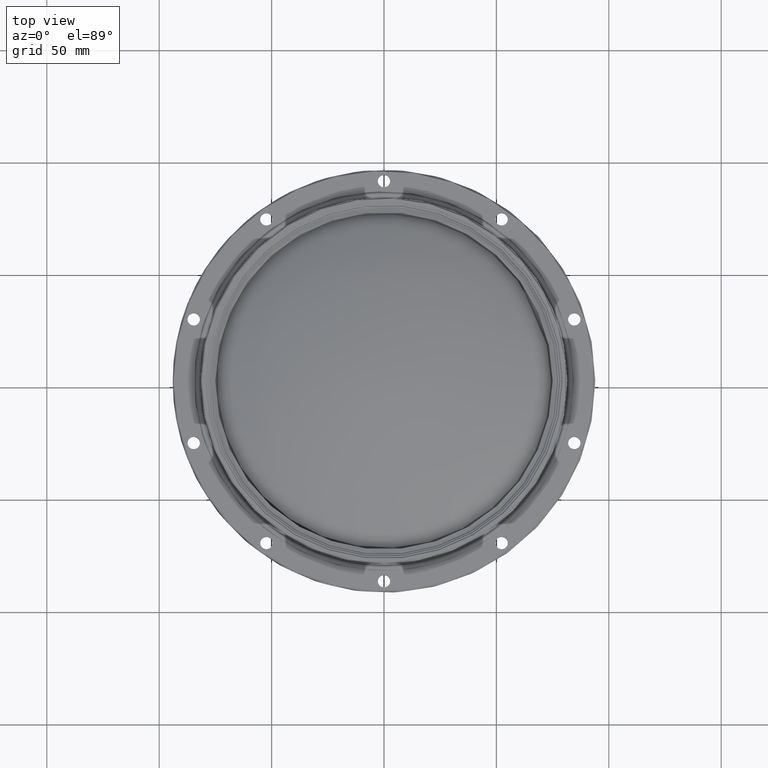
[diagram: clean part render]
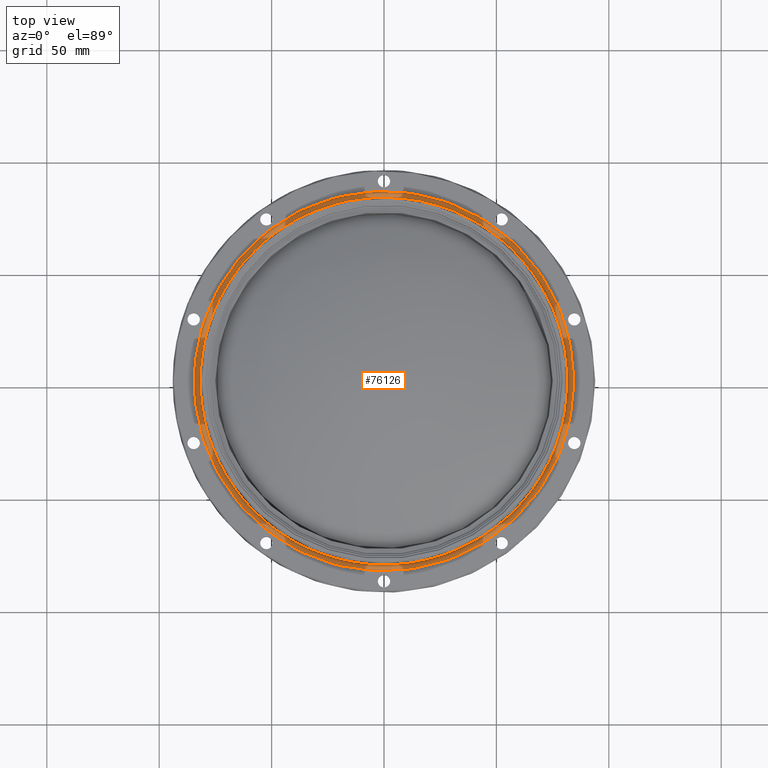
[diagram: same view with one face highlighted and labeled with its STEP entity id]
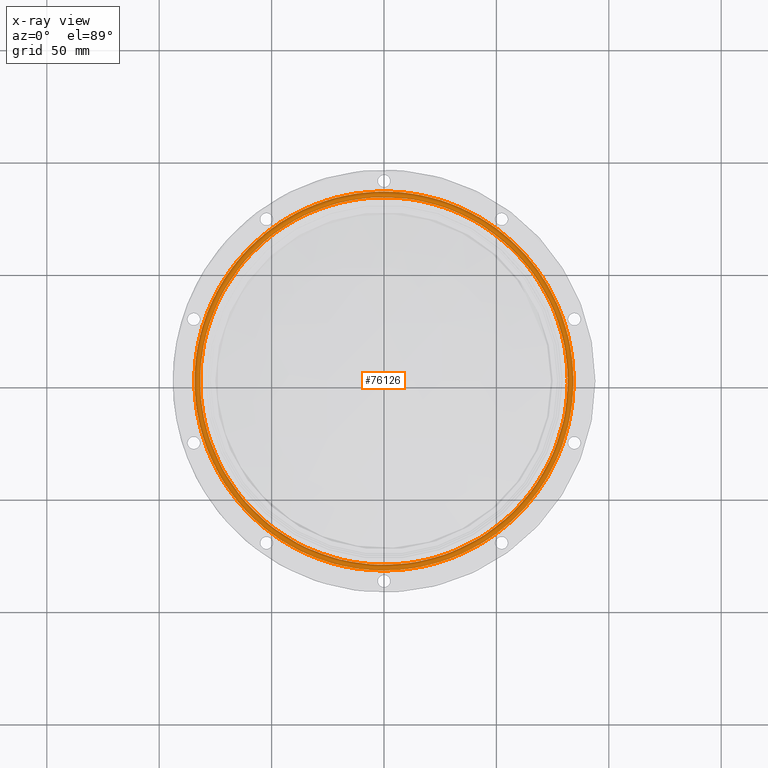
[diagram: x-ray of the same camera — body ghosted, the highlighted face saturated]
A machine part, top view. The second image highlights one B-rep face of the part: STEP entity #76126.
The next image is the same camera in x-ray: the body ghosted, the highlighted face saturated — about 0% of this face is hidden behind the body in this view.
In plain terms, the highlighted face is a freeform B-spline surface patch.
Its self-contained STEP definition (entity closure, byte-faithful):
#22 = CARTESIAN_POINT ( 'NONE',  ( 84.60162405190543211, -169.2032481038108642, -17.73434851268137180 ) ) ;
#134 = CARTESIAN_POINT ( 'NONE',  ( 0.000000000000000000, 0.000000000000000000, -20.15934851268138672 ) ) ;
#607 = CARTESIAN_POINT ( 'NONE',  ( 82.26133566486527116, -164.5226713297305423, -20.15934851268138672 ) ) ;
#1197 = CARTESIAN_POINT ( 'NONE',  ( -81.39837594809459631, -162.7967518961891926, -17.73434851268137180 ) ) ;
#2381 = CARTESIAN_POINT ( 'NONE',  ( -83.00000000000000000, 0.000000000000000000, -17.73434851268137180 ) ) ;
#2964 = CARTESIAN_POINT ( 'NONE',  ( 85.06831449143355428, -170.1366289828671086, -19.26647110480477920 ) ) ;
#3548 = CARTESIAN_POINT ( 'NONE',  ( 85.06831449143355428, 0.000000000000000000, -19.26647110480477210 ) ) ;
#4137 = CARTESIAN_POINT ( 'NONE',  ( -83.73866433513474306, 167.4773286702694861, -20.15934851268138672 ) ) ;
#5302 = CARTESIAN_POINT ( 'NONE',  ( -85.06831449143355428, 0.000000000000000000, -19.26647110480477210 ) ) ;
#8458 = EDGE_LOOP ( 'NONE', ( #39296 ) ) ;
#9006 = CARTESIAN_POINT ( 'NONE',  ( 84.60162405190543211, 169.2032481038108642, -17.73434851268137180 ) ) ;
#9604 = CARTESIAN_POINT ( 'NONE',  ( 80.93168550856645993, -161.8633710171329199, -19.26647110480477920 ) ) ;
#12212 = DIRECTION ( 'NONE',  ( -0.000000000000000000, -0.000000000000000000, -1.000000000000000000 ) ) ;
#18279 = EDGE_CURVE ( 'NONE', #69102, #69102, #115803, .T. ) ;
#18590 = CARTESIAN_POINT ( 'NONE',  ( 81.39837594809459631, -162.7967518961891926, -17.73434851268137180 ) ) ;
#18606 = EDGE_CURVE ( 'NONE', #60082, #60082, #66141, .T. ) ;
#20967 = CARTESIAN_POINT ( 'NONE',  ( 80.93168550856645993, 161.8633710171329199, -19.26647110480477920 ) ) ;
#24115 = CARTESIAN_POINT ( 'NONE',  ( 82.26133566486527116, 0.000000000000000000, -20.15934851268138672 ) ) ;
#27576 = CARTESIAN_POINT ( 'NONE',  ( 83.00000000000000000, 0.000000000000000000, -17.73434851268137180 ) ) ;
#28160 = CARTESIAN_POINT ( 'NONE',  ( 82.26133566486527116, 0.000000000000000000, -20.15934851268138672 ) ) ;
#28767 = CARTESIAN_POINT ( 'NONE',  ( -84.60162405190543211, -169.2032481038108642, -17.73434851268137180 ) ) ;
#29606 = CARTESIAN_POINT ( 'NONE',  ( 0.000000000000000000, 0.000000000000000000, -20.15934851268138672 ) ) ;
#29929 = FACE_OUTER_BOUND ( 'NONE', #69449, .T. ) ;
#31101 = CARTESIAN_POINT ( 'NONE',  ( 83.73866433513474306, 167.4773286702694861, -20.15934851268138672 ) ) ;
#31667 = CARTESIAN_POINT ( 'NONE',  ( -85.06831449143355428, -170.1366289828671086, -19.26647110480477920 ) ) ;
#35117 =( BOUNDED_SURFACE ( )  B_SPLINE_SURFACE ( 3, 3, ( 
 ( #110292, #55747, #65917, #102483, #56925, #607, #28160 ),
 ( #100722, #20967, #101319, #92331, #93528, #9604, #38943 ),
 ( #46755, #82741, #73157, #84523, #1197, #18590, #47941 ),
 ( #27576, #55153, #91737, #2381, #74347, #110888, #75519 ),
 ( #57529, #9006, #45576, #82159, #28767, #22, #69438 ),
 ( #3548, #113802, #105431, #5302, #31667, #2964, #67113 ),
 ( #103662, #31101, #4137, #48517, #68853, #106008, #41881 ) ),
 .UNSPECIFIED., .F., .T., .F. ) 
 B_SPLINE_SURFACE_WITH_KNOTS ( ( 4, 3, 4 ),
 ( 4, 3, 4 ),
 ( 0.000000000000000000, 0.5000000000000000000, 1.000000000000000000 ),
 ( 0.000000000000000000, 0.5000000000000000000, 1.000000000000000000 ),
 .UNSPECIFIED. ) 
 GEOMETRIC_REPRESENTATION_ITEM ( )  RATIONAL_B_SPLINE_SURFACE ( (
 ( 1.000000000000000000, 0.3333333333333333148, 0.3333333333333333148, 1.000000000000000000, 0.3333333333333333148, 0.3333333333333333148, 1.000000000000000000),
 ( 0.5275905058047929419, 0.1758635019349309714, 0.1758635019349309714, 0.5275905058047929419, 0.1758635019349309714, 0.1758635019349309714, 0.5275905058047929419),
 ( 0.5275905058047929419, 0.1758635019349309714, 0.1758635019349309714, 0.5275905058047929419, 0.1758635019349309714, 0.1758635019349309714, 0.5275905058047929419),
 ( 1.000000000000000000, 0.3333333333333333148, 0.3333333333333333148, 1.000000000000000000, 0.3333333333333333148, 0.3333333333333333148, 1.000000000000000000),
 ( 0.5275905058047929419, 0.1758635019349309714, 0.1758635019349309714, 0.5275905058047929419, 0.1758635019349309714, 0.1758635019349309714, 0.5275905058047929419),
 ( 0.5275905058047929419, 0.1758635019349309714, 0.1758635019349309714, 0.5275905058047929419, 0.1758635019349309714, 0.1758635019349309714, 0.5275905058047929419),
 ( 1.000000000000000000, 0.3333333333333333148, 0.3333333333333333148, 1.000000000000000000, 0.3333333333333333148, 0.3333333333333333148, 1.000000000000000000) ) ) 
 REPRESENTATION_ITEM ( '' )  SURFACE ( )  );
#38943 = CARTESIAN_POINT ( 'NONE',  ( 80.93168550856645993, 0.000000000000000000, -19.26647110480477210 ) ) ;
#39296 = ORIENTED_EDGE ( 'NONE', *, *, #18606, .T. ) ;
#41881 = CARTESIAN_POINT ( 'NONE',  ( 83.73866433513474306, 0.000000000000000000, -20.15934851268138672 ) ) ;
#42721 = CARTESIAN_POINT ( 'NONE',  ( 83.73866433513474306, 0.000000000000000000, -20.15934851268138672 ) ) ;
#45576 = CARTESIAN_POINT ( 'NONE',  ( -84.60162405190543211, 169.2032481038108642, -17.73434851268137180 ) ) ;
#46253 = ORIENTED_EDGE ( 'NONE', *, *, #18279, .F. ) ;
#46755 = CARTESIAN_POINT ( 'NONE',  ( 81.39837594809459631, 0.000000000000000000, -17.73434851268137180 ) ) ;
#47941 = CARTESIAN_POINT ( 'NONE',  ( 81.39837594809459631, 0.000000000000000000, -17.73434851268137180 ) ) ;
#48517 = CARTESIAN_POINT ( 'NONE',  ( -83.73866433513474306, 0.000000000000000000, -20.15934851268138672 ) ) ;
#55153 = CARTESIAN_POINT ( 'NONE',  ( 82.99999999999998579, 165.9999999999999716, -17.73434851268137535 ) ) ;
#55747 = CARTESIAN_POINT ( 'NONE',  ( 82.26133566486527116, 164.5226713297305423, -20.15934851268138672 ) ) ;
#56925 = CARTESIAN_POINT ( 'NONE',  ( -82.26133566486527116, -164.5226713297305423, -20.15934851268138672 ) ) ;
#57529 = CARTESIAN_POINT ( 'NONE',  ( 84.60162405190541790, 0.000000000000000000, -17.73434851268137180 ) ) ;
#58346 = AXIS2_PLACEMENT_3D ( 'NONE', #29606, #12212, #103908 ) ;
#60082 = VERTEX_POINT ( 'NONE', #24115 ) ;
#64141 = FACE_OUTER_BOUND ( 'NONE', #8458, .T. ) ;
#64246 = DIRECTION ( 'NONE',  ( 1.000000000000000000, 0.000000000000000000, 0.000000000000000000 ) ) ;
#65917 = CARTESIAN_POINT ( 'NONE',  ( -82.26133566486527116, 164.5226713297305423, -20.15934851268138672 ) ) ;
#66141 = CIRCLE ( 'NONE', #91053, 82.26133566486527116 ) ;
#67113 = CARTESIAN_POINT ( 'NONE',  ( 85.06831449143355428, 0.000000000000000000, -19.26647110480477210 ) ) ;
#68853 = CARTESIAN_POINT ( 'NONE',  ( -83.73866433513474306, -167.4773286702694861, -20.15934851268138672 ) ) ;
#69102 = VERTEX_POINT ( 'NONE', #42721 ) ;
#69438 = CARTESIAN_POINT ( 'NONE',  ( 84.60162405190541790, 0.000000000000000000, -17.73434851268137180 ) ) ;
#69449 = EDGE_LOOP ( 'NONE', ( #46253 ) ) ;
#73157 = CARTESIAN_POINT ( 'NONE',  ( -81.39837594809459631, 162.7967518961891926, -17.73434851268137180 ) ) ;
#73269 = DIRECTION ( 'NONE',  ( -0.000000000000000000, -0.000000000000000000, -1.000000000000000000 ) ) ;
#74347 = CARTESIAN_POINT ( 'NONE',  ( -82.99999999999998579, -165.9999999999999716, -17.73434851268137535 ) ) ;
#75519 = CARTESIAN_POINT ( 'NONE',  ( 83.00000000000000000, 0.000000000000000000, -17.73434851268137180 ) ) ;
#76126 = ADVANCED_FACE ( 'NONE', ( #64141, #29929 ), #35117, .T. ) ;
#82159 = CARTESIAN_POINT ( 'NONE',  ( -84.60162405190541790, 0.000000000000000000, -17.73434851268137180 ) ) ;
#82741 = CARTESIAN_POINT ( 'NONE',  ( 81.39837594809459631, 162.7967518961891926, -17.73434851268137180 ) ) ;
#84523 = CARTESIAN_POINT ( 'NONE',  ( -81.39837594809459631, 0.000000000000000000, -17.73434851268137180 ) ) ;
#91053 = AXIS2_PLACEMENT_3D ( 'NONE', #134, #73269, #64246 ) ;
#91737 = CARTESIAN_POINT ( 'NONE',  ( -82.99999999999998579, 165.9999999999999716, -17.73434851268137535 ) ) ;
#92331 = CARTESIAN_POINT ( 'NONE',  ( -80.93168550856645993, 0.000000000000000000, -19.26647110480477210 ) ) ;
#93528 = CARTESIAN_POINT ( 'NONE',  ( -80.93168550856645993, -161.8633710171329199, -19.26647110480477920 ) ) ;
#100722 = CARTESIAN_POINT ( 'NONE',  ( 80.93168550856645993, 0.000000000000000000, -19.26647110480477210 ) ) ;
#101319 = CARTESIAN_POINT ( 'NONE',  ( -80.93168550856645993, 161.8633710171329199, -19.26647110480477920 ) ) ;
#102483 = CARTESIAN_POINT ( 'NONE',  ( -82.26133566486527116, 0.000000000000000000, -20.15934851268138672 ) ) ;
#103662 = CARTESIAN_POINT ( 'NONE',  ( 83.73866433513474306, 0.000000000000000000, -20.15934851268138672 ) ) ;
#103908 = DIRECTION ( 'NONE',  ( 1.000000000000000000, 0.000000000000000000, 0.000000000000000000 ) ) ;
#105431 = CARTESIAN_POINT ( 'NONE',  ( -85.06831449143355428, 170.1366289828671086, -19.26647110480477920 ) ) ;
#106008 = CARTESIAN_POINT ( 'NONE',  ( 83.73866433513474306, -167.4773286702694861, -20.15934851268138672 ) ) ;
#110292 = CARTESIAN_POINT ( 'NONE',  ( 82.26133566486527116, 0.000000000000000000, -20.15934851268138672 ) ) ;
#110888 = CARTESIAN_POINT ( 'NONE',  ( 82.99999999999998579, -165.9999999999999716, -17.73434851268137535 ) ) ;
#113802 = CARTESIAN_POINT ( 'NONE',  ( 85.06831449143355428, 170.1366289828671086, -19.26647110480477920 ) ) ;
#115803 = CIRCLE ( 'NONE', #58346, 83.73866433513474306 ) ;